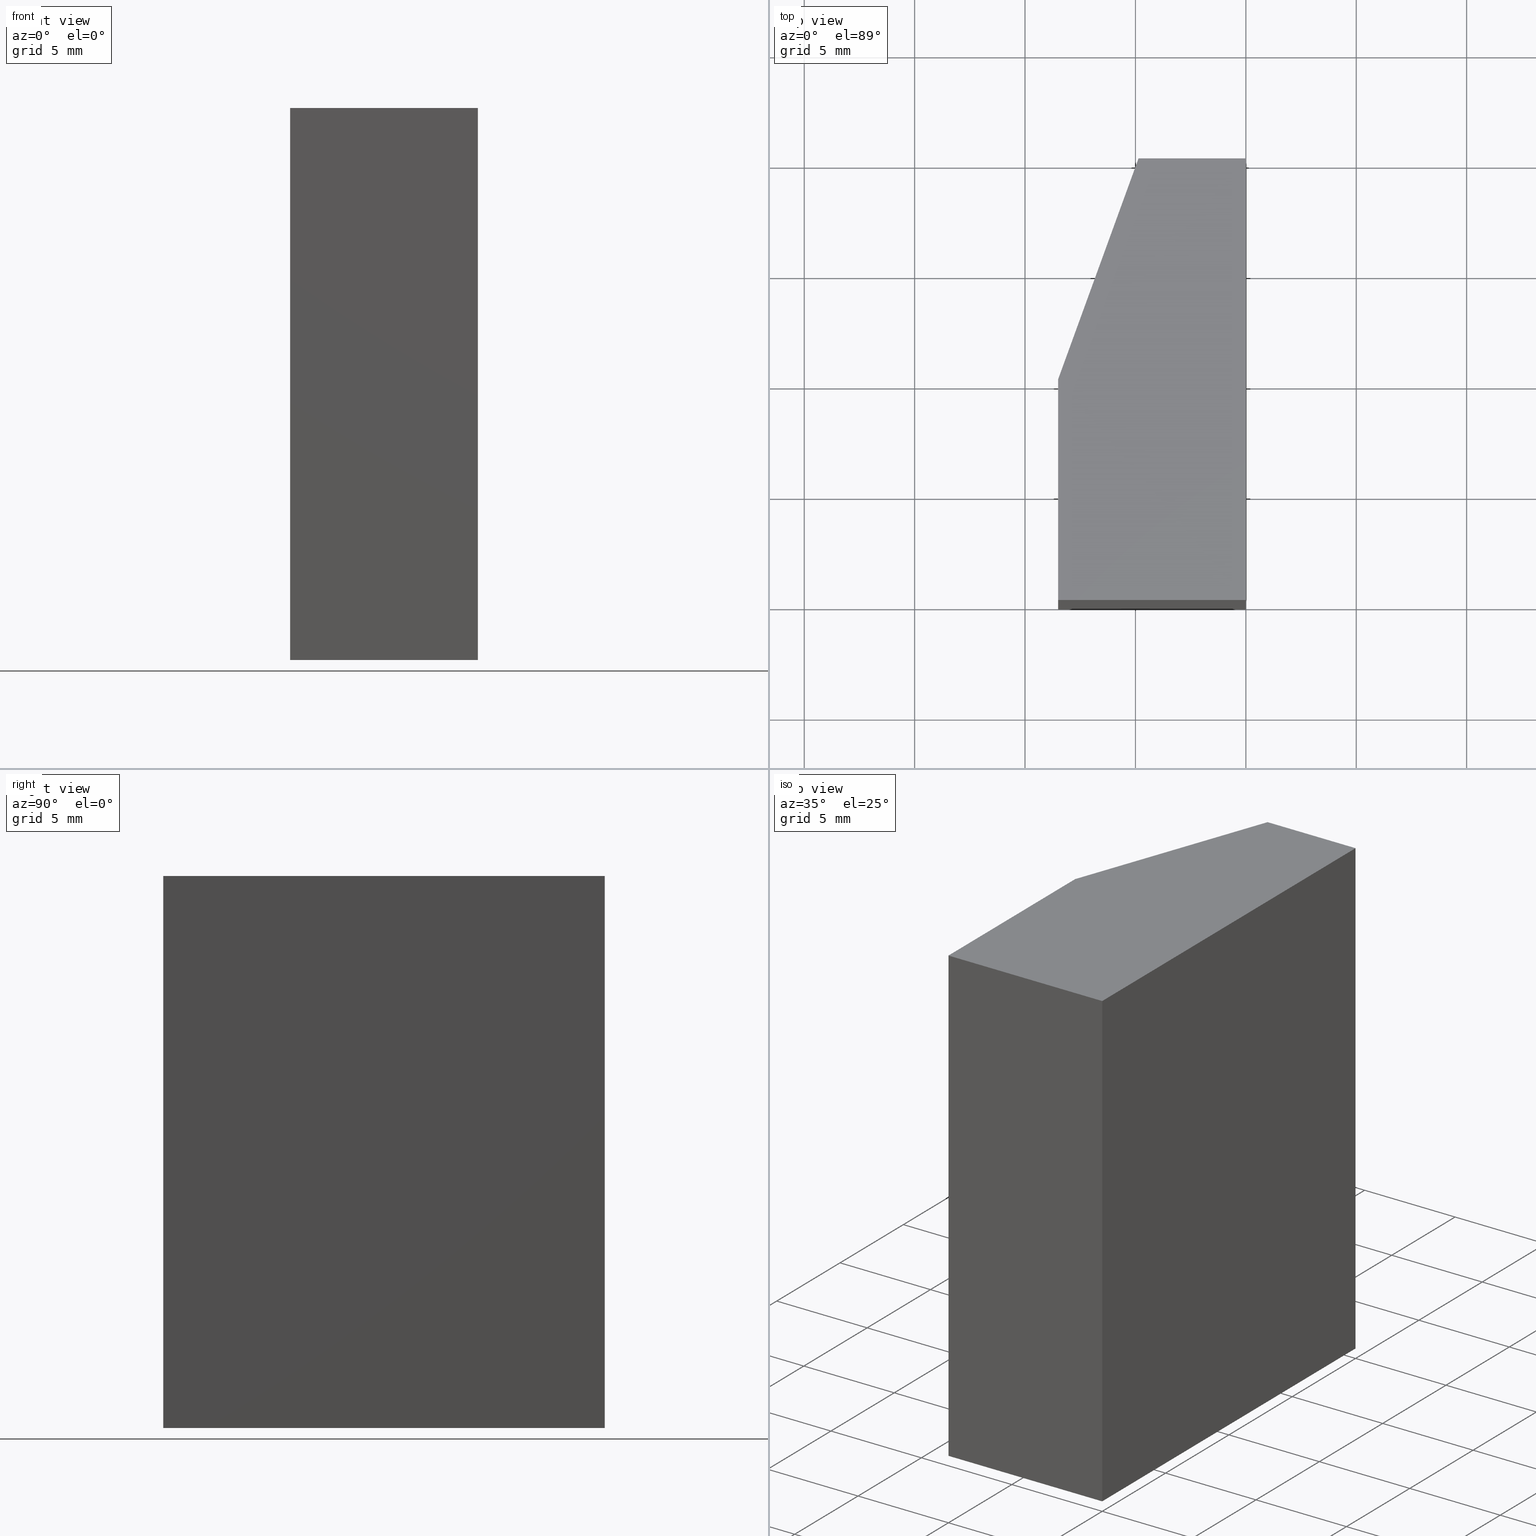
[diagram: canonical four-view strip — front | top / right | iso, engineering-drawing reading convention]
A machine part, canonical four-view strip (front | top / right | iso — engineering-drawing reading convention). The complete STEP part file that produces these views, byte-faithful:
ISO-10303-21;
HEADER;
/* Generated by software containing ST-Developer
 * from STEP Tools, Inc. (www.steptools.com) 
 */

FILE_DESCRIPTION(
/* description */ (''),
/* implementation_level */ '2;1');

FILE_NAME(
/* name */ 'E_3_01_06_06_00_WKZ-0131.stp',
/* time_stamp */ '2025-11-24T11:49:18+01:00',
/* author */ ('d.fischer'),
/* organization */ (''),
/* preprocessor_version */ 'ST-DEVELOPER v20',
/* originating_system */ 'Autodesk Inventor 2025',
/* authorisation */ '');

FILE_SCHEMA (('AUTOMOTIVE_DESIGN { 1 0 10303 214 3 1 1 }'));
ENDSEC;

DATA;
#10=MECHANICAL_DESIGN_GEOMETRIC_PRESENTATION_REPRESENTATION('',(#14,#15),
#226);
#11=SHAPE_REPRESENTATION_RELATIONSHIP('SRR','None',#233,#12);
#12=ADVANCED_BREP_SHAPE_REPRESENTATION('',(#13),#225);
#13=MANIFOLD_SOLID_BREP('Volumenk\X\F6rper1',#129);
#14=STYLED_ITEM('',(#243),#127);
#15=STYLED_ITEM('',(#242),#13);
#16=FACE_OUTER_BOUND('',#23,.T.);
#17=FACE_OUTER_BOUND('',#24,.T.);
#18=FACE_OUTER_BOUND('',#25,.T.);
#19=FACE_OUTER_BOUND('',#26,.T.);
#20=FACE_OUTER_BOUND('',#27,.T.);
#21=FACE_OUTER_BOUND('',#28,.T.);
#22=FACE_OUTER_BOUND('',#29,.T.);
#23=EDGE_LOOP('',(#85,#86,#87,#88,#89));
#24=EDGE_LOOP('',(#90,#91,#92,#93));
#25=EDGE_LOOP('',(#94,#95,#96,#97));
#26=EDGE_LOOP('',(#98,#99,#100,#101));
#27=EDGE_LOOP('',(#102,#103,#104,#105));
#28=EDGE_LOOP('',(#106,#107,#108,#109));
#29=EDGE_LOOP('',(#110,#111,#112,#113,#114));
#30=LINE('',#194,#45);
#31=LINE('',#196,#46);
#32=LINE('',#198,#47);
#33=LINE('',#200,#48);
#34=LINE('',#201,#49);
#35=LINE('',#205,#50);
#36=LINE('',#206,#51);
#37=LINE('',#207,#52);
#38=LINE('',#210,#53);
#39=LINE('',#211,#54);
#40=LINE('',#214,#55);
#41=LINE('',#215,#56);
#42=LINE('',#218,#57);
#43=LINE('',#219,#58);
#44=LINE('',#221,#59);
#45=VECTOR('',#163,10.);
#46=VECTOR('',#164,10.);
#47=VECTOR('',#165,10.);
#48=VECTOR('',#166,10.);
#49=VECTOR('',#167,10.);
#50=VECTOR('',#170,10.);
#51=VECTOR('',#171,10.);
#52=VECTOR('',#172,10.);
#53=VECTOR('',#175,10.);
#54=VECTOR('',#176,10.);
#55=VECTOR('',#179,10.);
#56=VECTOR('',#180,10.);
#57=VECTOR('',#183,10.);
#58=VECTOR('',#184,10.);
#59=VECTOR('',#187,10.);
#60=VERTEX_POINT('',#192);
#61=VERTEX_POINT('',#193);
#62=VERTEX_POINT('',#195);
#63=VERTEX_POINT('',#197);
#64=VERTEX_POINT('',#199);
#65=VERTEX_POINT('',#203);
#66=VERTEX_POINT('',#204);
#67=VERTEX_POINT('',#209);
#68=VERTEX_POINT('',#213);
#69=VERTEX_POINT('',#217);
#70=EDGE_CURVE('',#60,#61,#30,.T.);
#71=EDGE_CURVE('',#62,#60,#31,.T.);
#72=EDGE_CURVE('',#63,#62,#32,.T.);
#73=EDGE_CURVE('',#64,#63,#33,.T.);
#74=EDGE_CURVE('',#61,#64,#34,.T.);
#75=EDGE_CURVE('',#65,#66,#35,.T.);
#76=EDGE_CURVE('',#66,#63,#36,.T.);
#77=EDGE_CURVE('',#65,#62,#37,.T.);
#78=EDGE_CURVE('',#66,#67,#38,.T.);
#79=EDGE_CURVE('',#67,#64,#39,.T.);
#80=EDGE_CURVE('',#67,#68,#40,.T.);
#81=EDGE_CURVE('',#68,#61,#41,.T.);
#82=EDGE_CURVE('',#68,#69,#42,.T.);
#83=EDGE_CURVE('',#60,#69,#43,.T.);
#84=EDGE_CURVE('',#69,#65,#44,.T.);
#85=ORIENTED_EDGE('',*,*,#70,.F.);
#86=ORIENTED_EDGE('',*,*,#71,.F.);
#87=ORIENTED_EDGE('',*,*,#72,.F.);
#88=ORIENTED_EDGE('',*,*,#73,.F.);
#89=ORIENTED_EDGE('',*,*,#74,.F.);
#90=ORIENTED_EDGE('',*,*,#75,.T.);
#91=ORIENTED_EDGE('',*,*,#76,.T.);
#92=ORIENTED_EDGE('',*,*,#72,.T.);
#93=ORIENTED_EDGE('',*,*,#77,.F.);
#94=ORIENTED_EDGE('',*,*,#78,.T.);
#95=ORIENTED_EDGE('',*,*,#79,.T.);
#96=ORIENTED_EDGE('',*,*,#73,.T.);
#97=ORIENTED_EDGE('',*,*,#76,.F.);
#98=ORIENTED_EDGE('',*,*,#80,.T.);
#99=ORIENTED_EDGE('',*,*,#81,.T.);
#100=ORIENTED_EDGE('',*,*,#74,.T.);
#101=ORIENTED_EDGE('',*,*,#79,.F.);
#102=ORIENTED_EDGE('',*,*,#82,.T.);
#103=ORIENTED_EDGE('',*,*,#83,.F.);
#104=ORIENTED_EDGE('',*,*,#70,.T.);
#105=ORIENTED_EDGE('',*,*,#81,.F.);
#106=ORIENTED_EDGE('',*,*,#84,.T.);
#107=ORIENTED_EDGE('',*,*,#77,.T.);
#108=ORIENTED_EDGE('',*,*,#71,.T.);
#109=ORIENTED_EDGE('',*,*,#83,.T.);
#110=ORIENTED_EDGE('',*,*,#75,.F.);
#111=ORIENTED_EDGE('',*,*,#84,.F.);
#112=ORIENTED_EDGE('',*,*,#82,.F.);
#113=ORIENTED_EDGE('',*,*,#80,.F.);
#114=ORIENTED_EDGE('',*,*,#78,.F.);
#115=PLANE('',#152);
#116=PLANE('',#153);
#117=PLANE('',#154);
#118=PLANE('',#155);
#119=PLANE('',#156);
#120=PLANE('',#157);
#121=PLANE('',#158);
#122=ADVANCED_FACE('',(#16),#115,.F.);
#123=ADVANCED_FACE('',(#17),#116,.T.);
#124=ADVANCED_FACE('',(#18),#117,.T.);
#125=ADVANCED_FACE('',(#19),#118,.T.);
#126=ADVANCED_FACE('',(#20),#119,.T.);
#127=ADVANCED_FACE('',(#21),#120,.T.);
#128=ADVANCED_FACE('',(#22),#121,.T.);
#129=CLOSED_SHELL('',(#122,#123,#124,#125,#126,#127,#128));
#130=DERIVED_UNIT_ELEMENT(#133,1.);
#131=DERIVED_UNIT_ELEMENT(#228,-3.);
#132=DIMENSIONAL_EXPONENTS(0.,1.,0.,0.,0.,0.,0.);
#133=(
CONVERSION_BASED_UNIT('gram',#135)
MASS_UNIT()
NAMED_UNIT(#132)
);
#134=(
MASS_UNIT()
NAMED_UNIT(*)
SI_UNIT(.KILO.,.GRAM.)
);
#135=MASS_MEASURE_WITH_UNIT(MASS_MEASURE(0.001),#134);
#136=DERIVED_UNIT((#130,#131));
#137=MEASURE_REPRESENTATION_ITEM('density measure',
POSITIVE_RATIO_MEASURE(8.03),#136);
#138=PROPERTY_DEFINITION_REPRESENTATION(#143,#140);
#139=PROPERTY_DEFINITION_REPRESENTATION(#144,#141);
#140=REPRESENTATION('material name',(#142),#225);
#141=REPRESENTATION('density',(#137),#225);
#142=DESCRIPTIVE_REPRESENTATION_ITEM('1.4301','1.4301');
#143=PROPERTY_DEFINITION('material property','material name',#235);
#144=PROPERTY_DEFINITION('material property','density of part',#235);
#145=DATE_TIME_ROLE('creation_date');
#146=APPLIED_DATE_AND_TIME_ASSIGNMENT(#147,#145,(#235));
#147=DATE_AND_TIME(#148,#149);
#148=CALENDAR_DATE(2011,18,10);
#149=LOCAL_TIME(0,0,0.,#150);
#150=COORDINATED_UNIVERSAL_TIME_OFFSET(0,0,.BEHIND.);
#151=AXIS2_PLACEMENT_3D('',#190,#159,#160);
#152=AXIS2_PLACEMENT_3D('',#191,#161,#162);
#153=AXIS2_PLACEMENT_3D('',#202,#168,#169);
#154=AXIS2_PLACEMENT_3D('',#208,#173,#174);
#155=AXIS2_PLACEMENT_3D('',#212,#177,#178);
#156=AXIS2_PLACEMENT_3D('',#216,#181,#182);
#157=AXIS2_PLACEMENT_3D('',#220,#185,#186);
#158=AXIS2_PLACEMENT_3D('',#222,#188,#189);
#159=DIRECTION('axis',(0.,0.,1.));
#160=DIRECTION('refdir',(1.,0.,0.));
#161=DIRECTION('center_axis',(0.,0.,1.));
#162=DIRECTION('ref_axis',(1.,0.,0.));
#163=DIRECTION('',(-3.05311331771918E-16,1.,0.));
#164=DIRECTION('',(1.,2.61228946970625E-16,0.));
#165=DIRECTION('',(2.22044604925031E-16,-1.,0.));
#166=DIRECTION('',(-0.342020143325669,-0.939692620785909,0.));
#167=DIRECTION('',(-1.,0.,0.));
#168=DIRECTION('center_axis',(-1.,-2.22044604925031E-16,0.));
#169=DIRECTION('ref_axis',(0.,0.,1.));
#170=DIRECTION('',(-2.22044604925031E-16,1.,0.));
#171=DIRECTION('',(0.,0.,-1.));
#172=DIRECTION('',(0.,0.,-1.));
#173=DIRECTION('center_axis',(-0.939692620785909,0.342020143325669,0.));
#174=DIRECTION('ref_axis',(0.,0.,1.));
#175=DIRECTION('',(0.342020143325669,0.939692620785909,0.));
#176=DIRECTION('',(0.,0.,-1.));
#177=DIRECTION('center_axis',(0.,1.,0.));
#178=DIRECTION('ref_axis',(0.,0.,1.));
#179=DIRECTION('',(1.,0.,0.));
#180=DIRECTION('',(0.,0.,-1.));
#181=DIRECTION('center_axis',(1.,3.05311331771918E-16,0.));
#182=DIRECTION('ref_axis',(0.,0.,-1.));
#183=DIRECTION('',(3.05311331771918E-16,-1.,0.));
#184=DIRECTION('',(0.,0.,1.));
#185=DIRECTION('center_axis',(2.61228946970625E-16,-1.,0.));
#186=DIRECTION('ref_axis',(0.,0.,-1.));
#187=DIRECTION('',(-1.,-2.61228946970625E-16,0.));
#188=DIRECTION('center_axis',(0.,0.,1.));
#189=DIRECTION('ref_axis',(1.,0.,0.));
#190=CARTESIAN_POINT('',(0.,0.,0.));
#191=CARTESIAN_POINT('Origin',(-3.77809379025471,9.38542853088518,-12.5));
#192=CARTESIAN_POINT('',(3.88578058618805E-15,2.22044604925031E-15,-12.5));
#193=CARTESIAN_POINT('',(-2.22044604925031E-15,20.,-12.5));
#194=CARTESIAN_POINT('',(-2.22044604925031E-15,20.,-12.5));
#195=CARTESIAN_POINT('',(-8.5,0.,-12.5));
#196=CARTESIAN_POINT('',(3.88578058618805E-15,2.22044604925031E-15,-12.5));
#197=CARTESIAN_POINT('',(-8.5,10.,-12.5));
#198=CARTESIAN_POINT('',(-8.5,0.,-12.5));
#199=CARTESIAN_POINT('',(-4.86029765733798,20.,-12.5));
#200=CARTESIAN_POINT('',(-8.5,10.,-12.5));
#201=CARTESIAN_POINT('',(-4.86029765733798,20.,-12.5));
#202=CARTESIAN_POINT('Origin',(-8.5,0.,0.));
#203=CARTESIAN_POINT('',(-8.5,0.,12.5));
#204=CARTESIAN_POINT('',(-8.5,10.,12.5));
#205=CARTESIAN_POINT('',(-8.5,0.,12.5));
#206=CARTESIAN_POINT('',(-8.5,10.,0.));
#207=CARTESIAN_POINT('',(-8.5,0.,0.));
#208=CARTESIAN_POINT('Origin',(-8.5,10.,0.));
#209=CARTESIAN_POINT('',(-4.86029765733798,20.,12.5));
#210=CARTESIAN_POINT('',(-8.5,10.,12.5));
#211=CARTESIAN_POINT('',(-4.86029765733798,20.,0.));
#212=CARTESIAN_POINT('Origin',(-4.86029765733798,20.,0.));
#213=CARTESIAN_POINT('',(-2.22044604925031E-15,20.,12.5));
#214=CARTESIAN_POINT('',(-4.86029765733798,20.,12.5));
#215=CARTESIAN_POINT('',(-2.22044604925031E-15,20.,0.));
#216=CARTESIAN_POINT('Origin',(-2.22044604925031E-15,20.,0.));
#217=CARTESIAN_POINT('',(3.88578058618805E-15,2.22044604925031E-15,12.5));
#218=CARTESIAN_POINT('',(-2.22044604925031E-15,20.,12.5));
#219=CARTESIAN_POINT('',(3.88578058618805E-15,2.22044604925031E-15,0.));
#220=CARTESIAN_POINT('Origin',(3.88578058618805E-15,2.22044604925031E-15,
0.));
#221=CARTESIAN_POINT('',(3.88578058618805E-15,2.22044604925031E-15,12.5));
#222=CARTESIAN_POINT('Origin',(-3.77809379025471,9.38542853088518,12.5));
#223=UNCERTAINTY_MEASURE_WITH_UNIT(LENGTH_MEASURE(0.01),#227,
'DISTANCE_ACCURACY_VALUE',
'Maximum model space distance between geometric entities at asserted c
onnectivities');
#224=UNCERTAINTY_MEASURE_WITH_UNIT(LENGTH_MEASURE(0.01),#227,
'DISTANCE_ACCURACY_VALUE',
'Maximum model space distance between geometric entities at asserted c
onnectivities');
#225=(
GEOMETRIC_REPRESENTATION_CONTEXT(3)
GLOBAL_UNCERTAINTY_ASSIGNED_CONTEXT((#223))
GLOBAL_UNIT_ASSIGNED_CONTEXT((#227,#229,#230))
REPRESENTATION_CONTEXT('','3D')
);
#226=(
GEOMETRIC_REPRESENTATION_CONTEXT(3)
GLOBAL_UNCERTAINTY_ASSIGNED_CONTEXT((#224))
GLOBAL_UNIT_ASSIGNED_CONTEXT((#227,#229,#230))
REPRESENTATION_CONTEXT('','3D')
);
#227=(
LENGTH_UNIT()
NAMED_UNIT(*)
SI_UNIT(.MILLI.,.METRE.)
);
#228=(
LENGTH_UNIT()
NAMED_UNIT(*)
SI_UNIT(.CENTI.,.METRE.)
);
#229=(
NAMED_UNIT(*)
PLANE_ANGLE_UNIT()
SI_UNIT($,.RADIAN.)
);
#230=(
NAMED_UNIT(*)
SI_UNIT($,.STERADIAN.)
SOLID_ANGLE_UNIT()
);
#231=SHAPE_DEFINITION_REPRESENTATION(#232,#233);
#232=PRODUCT_DEFINITION_SHAPE('',$,#235);
#233=SHAPE_REPRESENTATION('',(#151),#225);
#234=PRODUCT_DEFINITION_CONTEXT('part definition',#239,'design');
#235=PRODUCT_DEFINITION('WKZ-0131','E_3_01_06_06_00_WKZ-0131',#236,#234);
#236=PRODUCT_DEFINITION_FORMATION('',$,#241);
#237=PRODUCT_RELATED_PRODUCT_CATEGORY('E_3_01_06_06_00_WKZ-0131',
'E_3_01_06_06_00_WKZ-0131',(#241));
#238=APPLICATION_PROTOCOL_DEFINITION('international standard',
'automotive_design',2009,#239);
#239=APPLICATION_CONTEXT(
'Core Data for Automotive Mechanical Design Process');
#240=PRODUCT_CONTEXT('part definition',#239,'mechanical');
#241=PRODUCT('WKZ-0131','E_3_01_06_06_00_WKZ-0131',$,(#240));
#242=PRESENTATION_STYLE_ASSIGNMENT((#244));
#243=PRESENTATION_STYLE_ASSIGNMENT((#245));
#244=SURFACE_STYLE_USAGE(.BOTH.,#248);
#245=SURFACE_STYLE_USAGE(.BOTH.,#249);
#246=SURFACE_STYLE_RENDERING_WITH_PROPERTIES($,#256,(#247));
#247=SURFACE_STYLE_TRANSPARENT(0.);
#248=SURFACE_SIDE_STYLE('',(#250,#246));
#249=SURFACE_SIDE_STYLE('',(#251));
#250=SURFACE_STYLE_FILL_AREA(#252);
#251=SURFACE_STYLE_FILL_AREA(#253);
#252=FILL_AREA_STYLE('',(#254));
#253=FILL_AREA_STYLE('',(#255));
#254=FILL_AREA_STYLE_COLOUR('',#256);
#255=FILL_AREA_STYLE_COLOUR('',#257);
#256=COLOUR_RGB('',0.92156862745098,0.92156862745098,0.92156862745098);
#257=COLOUR_RGB('',0.16078431372549,0.16078431372549,0.16078431372549);
ENDSEC;
END-ISO-10303-21;
